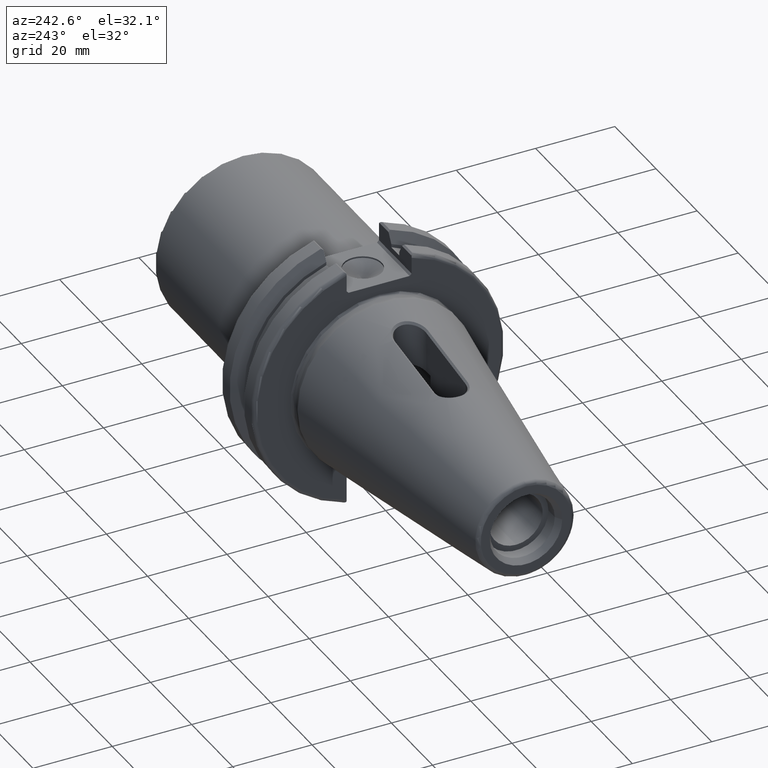
[diagram: clean part render]
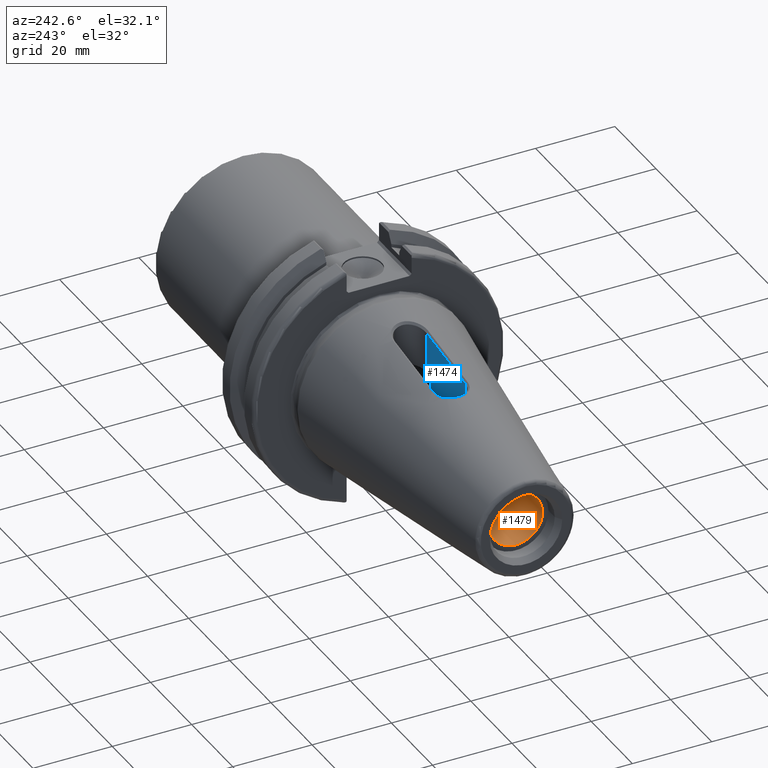
[diagram: same view with the hole feature highlighted: cylindrical wall and planar end face, labeled with their STEP entity ids]
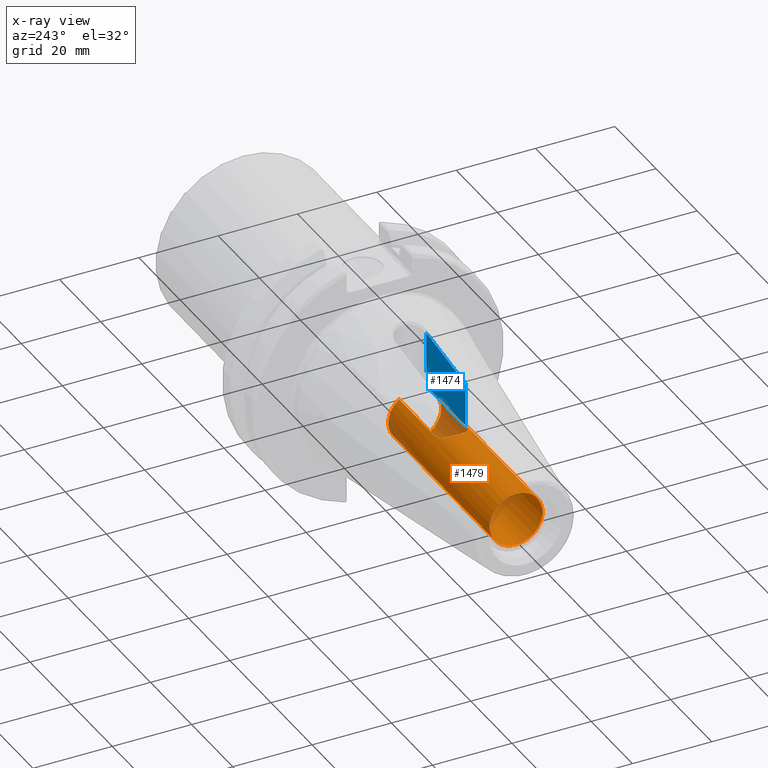
[diagram: x-ray of the same camera — body ghosted, the hole faces saturated]
A machine part, auxiliary view. The highlighted faces form one hole feature of diameter 13.3858 mm: the cylindrical wall (entity #1479, orange) and its adjacent planar end face (entity #1474, blue) — they share a circular edge in the B-rep.
The next image is the same camera in x-ray (body ghosted, the hole faces saturated) — the bore reads through the body.
Wall:
#82=B_SPLINE_CURVE_WITH_KNOTS('',3,(#2795,#2796,#2797,#2798,#2799,#2800,
#2801,#2802,#2803,#2804,#2805,#2806,#2807,#2808,#2809,#2810,#2811,#2812),
 .UNSPECIFIED.,.F.,.F.,(4,2,2,2,2,2,2,2,4),(0.,0.153768187773562,0.307536375547124,
0.460389418489882,0.613242461432639,0.766095504375397,0.918948547318155,
1.07271673509172,1.22648492286528),.UNSPECIFIED.);
#83=B_SPLINE_CURVE_WITH_KNOTS('',3,(#2825,#2826,#2827,#2828,#2829,#2830,
#2831,#2832,#2833,#2834),.UNSPECIFIED.,.F.,.F.,(4,2,2,2,4),(-0.613242461432639,
-0.460389418489882,-0.307536375547124,-0.153768187773562,0.),
 .UNSPECIFIED.);
#84=B_SPLINE_CURVE_WITH_KNOTS('',3,(#2836,#2837,#2838,#2839,#2840,#2841,
#2842,#2843,#2844,#2845),.UNSPECIFIED.,.F.,.F.,(4,2,2,2,4),(-1.22648492286528,
-1.07271673509172,-0.918948547318155,-0.766095504375397,-0.613242461432639),
 .UNSPECIFIED.);
#107=CYLINDRICAL_SURFACE('',#1584,6.6929);
#197=FACE_OUTER_BOUND('',#283,.T.);
#283=EDGE_LOOP('',(#1144,#1145,#1146,#1147,#1148,#1149,#1150,#1151,#1152,
#1153,#1154,#1155));
#362=LINE('',#2786,#467);
#370=LINE('',#2820,#475);
#375=LINE('',#2871,#480);
#376=LINE('',#2874,#481);
#379=LINE('',#2881,#484);
#467=VECTOR('',#1747,10.);
#475=VECTOR('',#1759,10.);
#480=VECTOR('',#1770,10.);
#481=VECTOR('',#1773,10.);
#484=VECTOR('',#1780,6.6929);
#564=CIRCLE('',#1585,6.6929);
#565=CIRCLE('',#1586,6.6929);
#566=CIRCLE('',#1587,6.6929);
#651=VERTEX_POINT('',#2783);
#652=VERTEX_POINT('',#2785);
#655=VERTEX_POINT('',#2793);
#658=VERTEX_POINT('',#2818);
#659=VERTEX_POINT('',#2822);
#660=VERTEX_POINT('',#2824);
#661=VERTEX_POINT('',#2835);
#663=VERTEX_POINT('',#2869);
#664=VERTEX_POINT('',#2873);
#666=VERTEX_POINT('',#2879);
#824=EDGE_CURVE('',#652,#651,#362,.T.);
#829=EDGE_CURVE('',#651,#655,#82,.T.);
#833=EDGE_CURVE('',#655,#658,#370,.T.);
#835=EDGE_CURVE('',#660,#659,#83,.T.);
#836=EDGE_CURVE('',#661,#660,#84,.T.);
#841=EDGE_CURVE('',#659,#663,#375,.T.);
#842=EDGE_CURVE('',#664,#661,#376,.T.);
#845=EDGE_CURVE('',#666,#666,#564,.T.);
#846=EDGE_CURVE('',#666,#660,#379,.T.);
#847=EDGE_CURVE('',#663,#652,#565,.T.);
#848=EDGE_CURVE('',#658,#664,#566,.T.);
#1144=ORIENTED_EDGE('',*,*,#845,.F.);
#1145=ORIENTED_EDGE('',*,*,#846,.T.);
#1146=ORIENTED_EDGE('',*,*,#835,.T.);
#1147=ORIENTED_EDGE('',*,*,#841,.T.);
#1148=ORIENTED_EDGE('',*,*,#847,.T.);
#1149=ORIENTED_EDGE('',*,*,#824,.T.);
#1150=ORIENTED_EDGE('',*,*,#829,.T.);
#1151=ORIENTED_EDGE('',*,*,#833,.T.);
#1152=ORIENTED_EDGE('',*,*,#848,.T.);
#1153=ORIENTED_EDGE('',*,*,#842,.T.);
#1154=ORIENTED_EDGE('',*,*,#836,.T.);
#1155=ORIENTED_EDGE('',*,*,#846,.F.);
#1479=ADVANCED_FACE('',(#197),#107,.F.);
#1584=AXIS2_PLACEMENT_3D('',#2878,#1776,#1777);
#1585=AXIS2_PLACEMENT_3D('',#2880,#1778,#1779);
#1586=AXIS2_PLACEMENT_3D('',#2882,#1781,#1782);
#1587=AXIS2_PLACEMENT_3D('',#2883,#1783,#1784);
#1747=DIRECTION('',(-1.,0.,0.));
#1759=DIRECTION('',(1.,0.,0.));
#1770=DIRECTION('',(1.,0.,0.));
#1773=DIRECTION('',(-1.,0.,0.));
#1776=DIRECTION('center_axis',(-1.,0.,0.));
#1777=DIRECTION('ref_axis',(0.,0.,1.));
#1778=DIRECTION('center_axis',(1.,0.,0.));
#1779=DIRECTION('ref_axis',(0.,0.,1.));
#1780=DIRECTION('',(1.,0.,0.));
#1781=DIRECTION('center_axis',(1.,0.,0.));
#1782=DIRECTION('ref_axis',(0.,0.,1.));
#1783=DIRECTION('center_axis',(1.,0.,0.));
#1784=DIRECTION('ref_axis',(0.,0.,1.));
#2783=CARTESIAN_POINT('',(-31.2,3.95000000000001,5.40300013048306));
#2785=CARTESIAN_POINT('',(-14.15,3.95,5.40300013048306));
#2786=CARTESIAN_POINT('',(55.7900533063438,3.94999999999999,5.40300013048307));
#2793=CARTESIAN_POINT('',(-31.2,-3.95,5.40300013048306));
#2795=CARTESIAN_POINT('Ctrl Pts',(-31.2,3.95,5.40300013048306));
#2796=CARTESIAN_POINT('Ctrl Pts',(-31.7125606259119,3.95,5.40300013048306));
#2797=CARTESIAN_POINT('Ctrl Pts',(-32.2461162719564,3.84489080002521,5.48364157964481));
#2798=CARTESIAN_POINT('Ctrl Pts',(-33.2131772027484,3.43870195600555,5.74707158580121));
#2799=CARTESIAN_POINT('Ctrl Pts',(-33.6483548786361,3.13778869273768,5.92394135512465));
#2800=CARTESIAN_POINT('Ctrl Pts',(-34.3357371247239,2.45040644664986,6.23959932268127));
#2801=CARTESIAN_POINT('Ctrl Pts',(-34.6380879615216,2.01464874972467,6.40189989975235));
#2802=CARTESIAN_POINT('Ctrl Pts',(-35.0455304289406,1.04458369357269,6.62962873267896));
#2803=CARTESIAN_POINT('Ctrl Pts',(-35.15,0.509510143142527,6.6929));
#2804=CARTESIAN_POINT('Ctrl Pts',(-35.15,-0.509510143142525,6.6929));
#2805=CARTESIAN_POINT('Ctrl Pts',(-35.0455304289406,-1.04458369357268,6.62962873267896));
#2806=CARTESIAN_POINT('Ctrl Pts',(-34.6380879615216,-2.01464874972467,6.40189989975235));
#2807=CARTESIAN_POINT('Ctrl Pts',(-34.3357371247239,-2.45040644664986,6.23959932268127));
#2808=CARTESIAN_POINT('Ctrl Pts',(-33.6483548786361,-3.13778869273768,5.92394135512465));
#2809=CARTESIAN_POINT('Ctrl Pts',(-33.2131772027484,-3.43870195600554,5.74707158580121));
#2810=CARTESIAN_POINT('Ctrl Pts',(-32.2461162719564,-3.84489080002521,5.48364157964482));
#2811=CARTESIAN_POINT('Ctrl Pts',(-31.7125606259119,-3.95,5.40300013048306));
#2812=CARTESIAN_POINT('Ctrl Pts',(-31.2,-3.95,5.40300013048306));
#2818=CARTESIAN_POINT('',(-14.15,-3.95,5.40300013048306));
#2820=CARTESIAN_POINT('',(55.7900533063438,-3.94999999999999,5.40300013048307));
#2822=CARTESIAN_POINT('',(-31.2,3.95000000000001,-5.40300013048306));
#2824=CARTESIAN_POINT('',(-35.15,4.92234279407274E-16,-6.6929));
#2825=CARTESIAN_POINT('Ctrl Pts',(-35.15,1.80411241501588E-15,-6.6929));
#2826=CARTESIAN_POINT('Ctrl Pts',(-35.15,0.509510143142527,-6.6929));
#2827=CARTESIAN_POINT('Ctrl Pts',(-35.0455304289406,1.04458369357269,-6.62962873267896));
#2828=CARTESIAN_POINT('Ctrl Pts',(-34.6380879615216,2.01464874972467,-6.40189989975235));
#2829=CARTESIAN_POINT('Ctrl Pts',(-34.3357371247239,2.45040644664986,-6.23959932268127));
#2830=CARTESIAN_POINT('Ctrl Pts',(-33.6483548786361,3.13778869273768,-5.92394135512465));
#2831=CARTESIAN_POINT('Ctrl Pts',(-33.2131772027484,3.43870195600555,-5.74707158580121));
#2832=CARTESIAN_POINT('Ctrl Pts',(-32.2461162719564,3.84489080002521,-5.48364157964481));
#2833=CARTESIAN_POINT('Ctrl Pts',(-31.7125606259119,3.95,-5.40300013048306));
#2834=CARTESIAN_POINT('Ctrl Pts',(-31.2,3.95,-5.40300013048306));
#2835=CARTESIAN_POINT('',(-31.2,-3.95,-5.40300013048306));
#2836=CARTESIAN_POINT('Ctrl Pts',(-31.2,-3.95,-5.40300013048306));
#2837=CARTESIAN_POINT('Ctrl Pts',(-31.7125606259119,-3.95,-5.40300013048306));
#2838=CARTESIAN_POINT('Ctrl Pts',(-32.2461162719564,-3.84489080002521,-5.48364157964482));
#2839=CARTESIAN_POINT('Ctrl Pts',(-33.2131772027484,-3.43870195600554,-5.74707158580121));
#2840=CARTESIAN_POINT('Ctrl Pts',(-33.6483548786361,-3.13778869273768,-5.92394135512465));
#2841=CARTESIAN_POINT('Ctrl Pts',(-34.3357371247239,-2.45040644664986,-6.23959932268127));
#2842=CARTESIAN_POINT('Ctrl Pts',(-34.6380879615216,-2.01464874972467,-6.40189989975235));
#2843=CARTESIAN_POINT('Ctrl Pts',(-35.0455304289406,-1.04458369357268,-6.62962873267896));
#2844=CARTESIAN_POINT('Ctrl Pts',(-35.15,-0.509510143142525,-6.6929));
#2845=CARTESIAN_POINT('Ctrl Pts',(-35.15,1.80411241501588E-15,-6.6929));
#2869=CARTESIAN_POINT('',(-14.15,3.95,-5.40300013048306));
#2871=CARTESIAN_POINT('',(55.7900533063438,3.94999999999999,-5.40300013048307));
#2873=CARTESIAN_POINT('',(-14.15,-3.95,-5.40300013048306));
#2874=CARTESIAN_POINT('',(55.7900533063438,-3.94999999999999,-5.40300013048307));
#2878=CARTESIAN_POINT('Origin',(55.7900533063438,0.,0.));
#2879=CARTESIAN_POINT('',(-63.45,8.19643856201332E-16,-6.6929));
#2880=CARTESIAN_POINT('Origin',(-63.45,0.,0.));
#2881=CARTESIAN_POINT('',(55.7900533063438,-8.19643856201332E-16,-6.6929));
#2882=CARTESIAN_POINT('Origin',(-14.15,0.,0.));
#2883=CARTESIAN_POINT('Origin',(-14.15,0.,0.));
End face:
#79=B_SPLINE_CURVE_WITH_KNOTS('',3,(#2737,#2738,#2739,#2740),
 .UNSPECIFIED.,.F.,.F.,(4,4),(0.00688768729034347,1.93110974223985),
 .UNSPECIFIED.);
#81=B_SPLINE_CURVE_WITH_KNOTS('',3,(#2778,#2779,#2780,#2781),
 .UNSPECIFIED.,.F.,.F.,(4,4),(-1.17958621310274,-1.17236581743025),
 .UNSPECIFIED.);
#135=PLANE('',#1579);
#192=FACE_OUTER_BOUND('',#278,.T.);
#278=EDGE_LOOP('',(#1112,#1113,#1114,#1115,#1116,#1117,#1118));
#366=LINE('',#2794,#471);
#367=LINE('',#2815,#472);
#368=LINE('',#2817,#473);
#369=LINE('',#2819,#474);
#370=LINE('',#2820,#475);
#471=VECTOR('',#1753,10.);
#472=VECTOR('',#1756,10.);
#473=VECTOR('',#1757,10.);
#474=VECTOR('',#1758,10.);
#475=VECTOR('',#1759,10.);
#643=VERTEX_POINT('',#2565);
#649=VERTEX_POINT('',#2734);
#650=VERTEX_POINT('',#2736);
#655=VERTEX_POINT('',#2793);
#656=VERTEX_POINT('',#2814);
#657=VERTEX_POINT('',#2816);
#658=VERTEX_POINT('',#2818);
#819=EDGE_CURVE('',#649,#650,#79,.T.);
#822=EDGE_CURVE('',#650,#643,#81,.T.);
#828=EDGE_CURVE('',#655,#643,#366,.T.);
#830=EDGE_CURVE('',#656,#649,#367,.T.);
#831=EDGE_CURVE('',#657,#656,#368,.T.);
#832=EDGE_CURVE('',#658,#657,#369,.T.);
#833=EDGE_CURVE('',#655,#658,#370,.T.);
#1112=ORIENTED_EDGE('',*,*,#822,.F.);
#1113=ORIENTED_EDGE('',*,*,#819,.F.);
#1114=ORIENTED_EDGE('',*,*,#830,.F.);
#1115=ORIENTED_EDGE('',*,*,#831,.F.);
#1116=ORIENTED_EDGE('',*,*,#832,.F.);
#1117=ORIENTED_EDGE('',*,*,#833,.F.);
#1118=ORIENTED_EDGE('',*,*,#828,.T.);
#1474=ADVANCED_FACE('',(#192),#135,.F.);
#1579=AXIS2_PLACEMENT_3D('',#2813,#1754,#1755);
#1753=DIRECTION('',(0.,0.,1.));
#1754=DIRECTION('center_axis',(1.74380579784056E-16,-1.,0.));
#1755=DIRECTION('ref_axis',(1.,1.74380579784056E-16,0.));
#1756=DIRECTION('',(0.,0.,1.));
#1757=DIRECTION('',(1.,0.,0.));
#1758=DIRECTION('',(0.,0.,1.));
#1759=DIRECTION('',(1.,0.,0.));
#2565=CARTESIAN_POINT('',(-31.2,-3.95,16.7225645866814));
#2734=CARTESIAN_POINT('',(-12.0999999999973,-3.95,19.5700185894638));
#2736=CARTESIAN_POINT('',(-31.1260148284863,-3.95,16.7334791703647));
#2737=CARTESIAN_POINT('Ctrl Pts',(-12.0999999999972,-3.95,19.5700185894634));
#2738=CARTESIAN_POINT('Ctrl Pts',(-18.9433369571797,-3.95,18.5528770195622));
#2739=CARTESIAN_POINT('Ctrl Pts',(-25.2500984217199,-3.95,17.6126182770699));
#2740=CARTESIAN_POINT('Ctrl Pts',(-31.1260148284863,-3.95,16.7334791703647));
#2778=CARTESIAN_POINT('Ctrl Pts',(-31.1260148284863,-3.95,16.7334791703647));
#2779=CARTESIAN_POINT('Ctrl Pts',(-31.1507318610936,-3.95,16.7297810731723));
#2780=CARTESIAN_POINT('Ctrl Pts',(-31.175392370501,-3.95,16.7261429681729));
#2781=CARTESIAN_POINT('Ctrl Pts',(-31.2,-3.95,16.7225645866814));
#2793=CARTESIAN_POINT('',(-31.2,-3.95,5.40300013048306));
#2794=CARTESIAN_POINT('',(-31.2,-3.95,0.));
#2813=CARTESIAN_POINT('Origin',(-31.2,-3.95,0.));
#2814=CARTESIAN_POINT('',(-12.1,-3.95,9.29556345790829));
#2815=CARTESIAN_POINT('',(-12.1,-3.95,0.));
#2816=CARTESIAN_POINT('',(-14.15,-3.95,9.29556345790829));
#2817=CARTESIAN_POINT('',(-8.15000000000001,-3.95,9.29556345790829));
#2818=CARTESIAN_POINT('',(-14.15,-3.95,5.40300013048306));
#2819=CARTESIAN_POINT('',(-14.15,-3.95,0.));
#2820=CARTESIAN_POINT('',(55.7900533063438,-3.94999999999999,5.40300013048307));